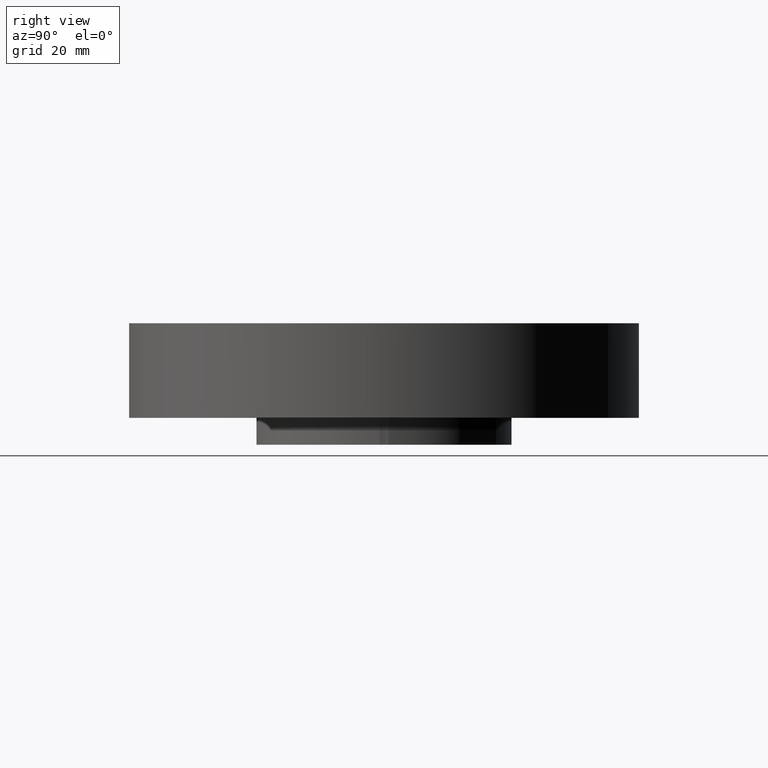
[diagram: clean part render]
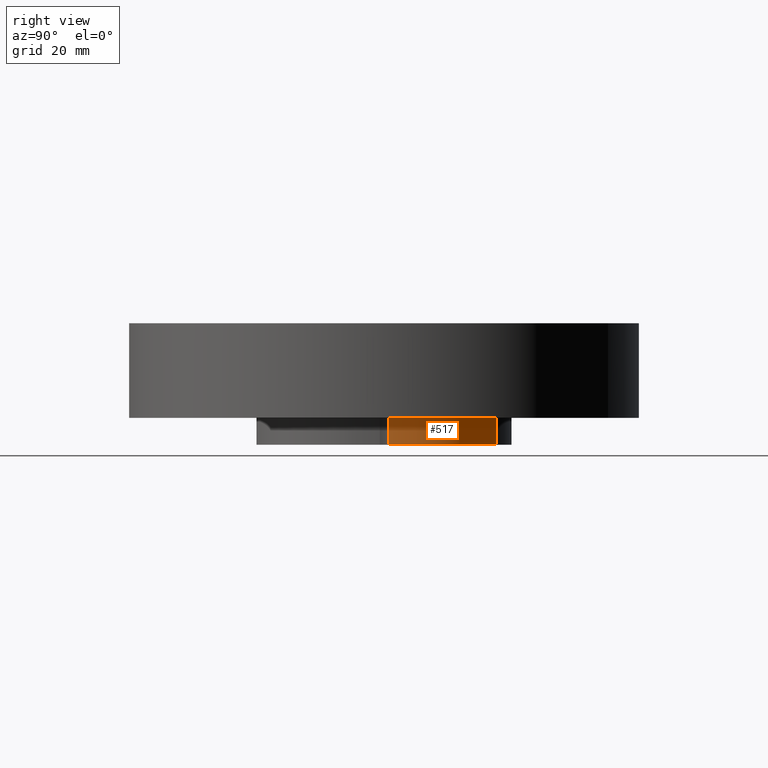
[diagram: same view with one face highlighted and labeled with its STEP entity id]
A machine part, right view. The second image highlights one B-rep face of the part: STEP entity #517.
In plain terms, the highlighted cylindrical surface (partial cylindrical patch) has radius 30.1625 mm, axis along (0, 0, -1).
Its self-contained STEP definition (entity closure, byte-faithful):
#119=AXIS2_PLACEMENT_3D('Circle Axis2P3D',#117,#118,$) ;
#430=AXIS2_PLACEMENT_3D('Circle Axis2P3D',#428,#429,$) ;
#504=AXIS2_PLACEMENT_3D('Cylinder Axis2P3D',#501,#502,#503) ;
#114=CARTESIAN_POINT('Vertex',(0.569317827095,1.04212929225,-0.250000000001)) ;
#117=CARTESIAN_POINT('Axis2P3D Location',(0.,0.,-0.250000000001)) ;
#121=CARTESIAN_POINT('Vertex',(1.186825,0.0400333532821,-0.250000000001)) ;
#346=CARTESIAN_POINT('Line Origine',(1.186825,0.0400333532821,0.440000000002)) ;
#350=CARTESIAN_POINT('Vertex',(1.186825,0.0400333532821,0.)) ;
#428=CARTESIAN_POINT('Axis2P3D Location',(0.,0.,0.)) ;
#432=CARTESIAN_POINT('Vertex',(0.569317827095,1.04212929225,6.99353086378E-017)) ;
#501=CARTESIAN_POINT('Axis2P3D Location',(0.,0.,0.315000000001)) ;
#506=CARTESIAN_POINT('Line Origine',(0.569317827095,1.04212929225,-0.125)) ;
#118=DIRECTION('Axis2P3D Direction',(0.,0.,-0.0393700787402)) ;
#347=DIRECTION('Vector Direction',(0.,0.,-0.0393700787402)) ;
#429=DIRECTION('Axis2P3D Direction',(0.,0.,-0.0393700787402)) ;
#502=DIRECTION('Axis2P3D Direction',(0.,0.,-0.0393700787402)) ;
#503=DIRECTION('Axis2P3D XDirection',(0.00132725580711,0.0393476999586,0.)) ;
#507=DIRECTION('Vector Direction',(0.,0.,-0.0393700787402)) ;
#348=VECTOR('Line Direction',#347,0.0393700787402) ;
#508=VECTOR('Line Direction',#507,0.0393700787402) ;
#512=ORIENTED_EDGE('',*,*,#123,.F.) ;
#513=ORIENTED_EDGE('',*,*,#510,.T.) ;
#514=ORIENTED_EDGE('',*,*,#434,.T.) ;
#515=ORIENTED_EDGE('',*,*,#352,.T.) ;
#517=ADVANCED_FACE('PartBody',(#516),#505,.T.) ;
#120=CIRCLE('generated circle',#119,1.1875) ;
#431=CIRCLE('generated circle',#430,1.1875) ;
#505=CYLINDRICAL_SURFACE('generated cylinder',#504,1.1875) ;
#123=EDGE_CURVE('',#115,#122,#120,.T.) ;
#352=EDGE_CURVE('',#351,#122,#349,.T.) ;
#434=EDGE_CURVE('',#433,#351,#431,.T.) ;
#510=EDGE_CURVE('',#115,#433,#509,.F.) ;
#511=EDGE_LOOP('',(#512,#513,#514,#515)) ;
#516=FACE_OUTER_BOUND('',#511,.T.) ;
#349=LINE('Line',#346,#348) ;
#509=LINE('Line',#506,#508) ;
#115=VERTEX_POINT('',#114) ;
#122=VERTEX_POINT('',#121) ;
#351=VERTEX_POINT('',#350) ;
#433=VERTEX_POINT('',#432) ;